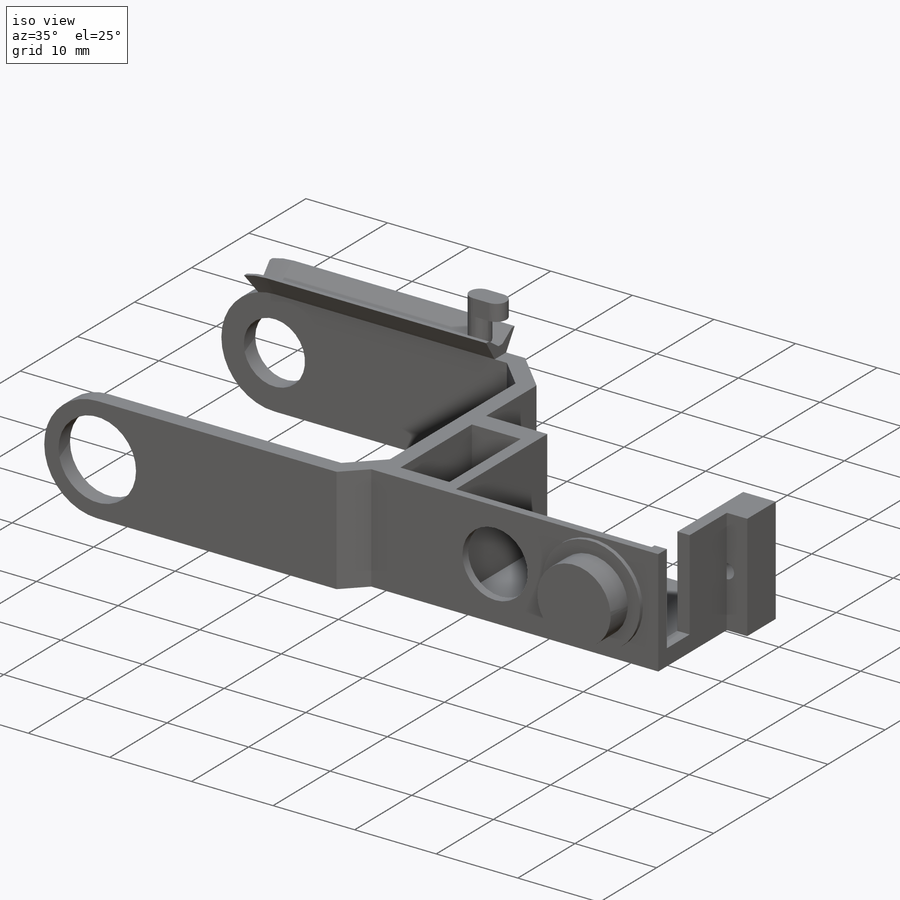
[diagram: iso view]
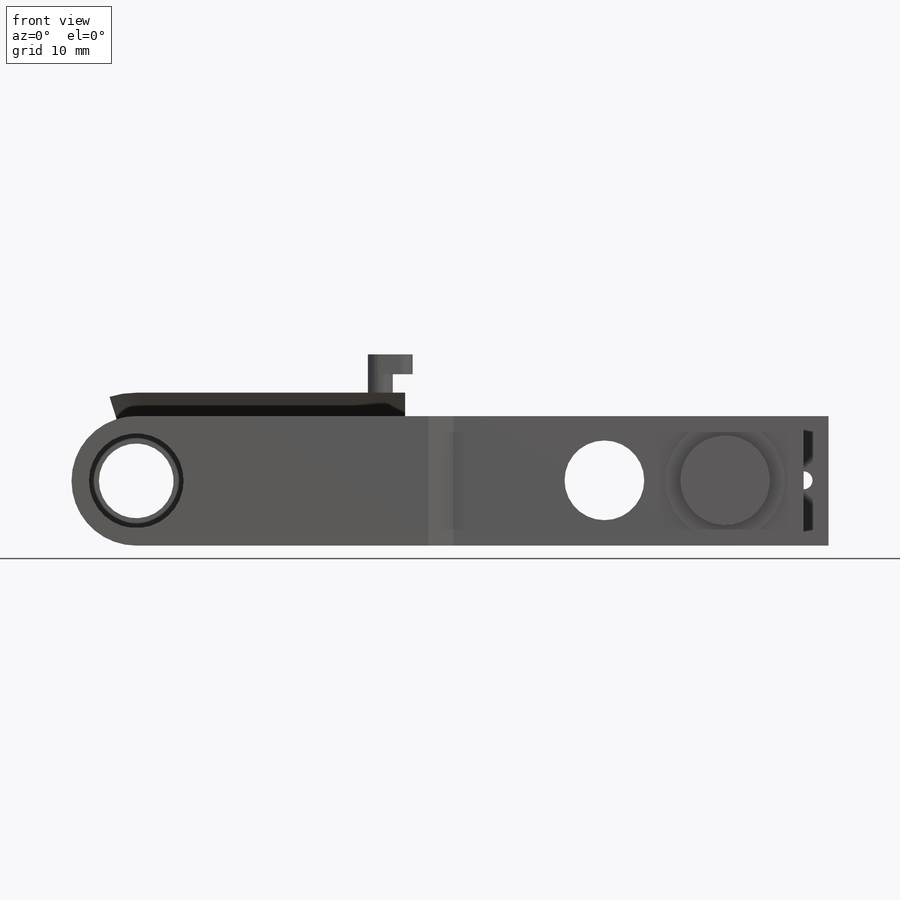
[diagram: front view]
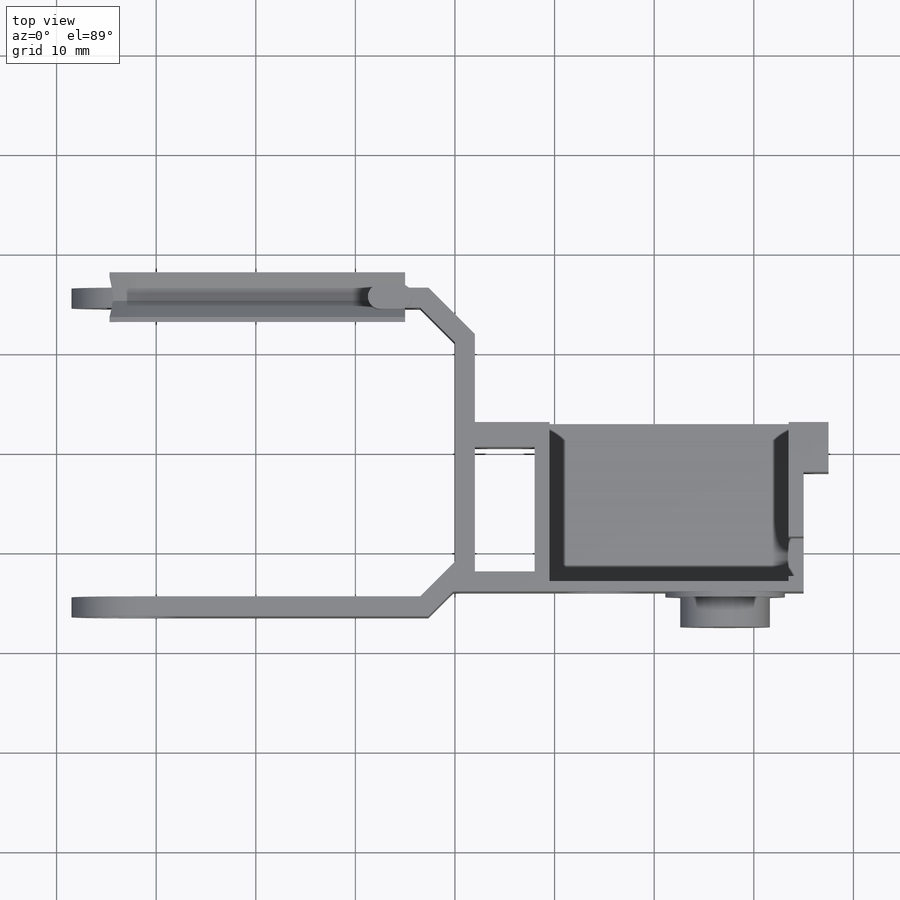
[diagram: top view]
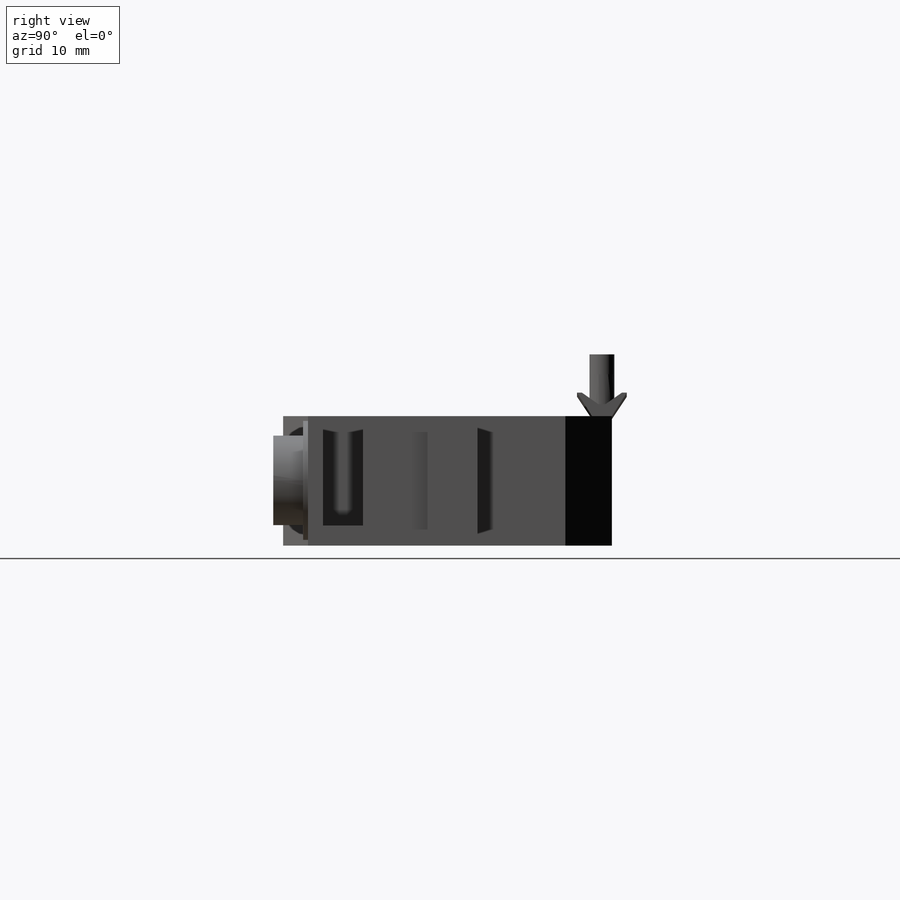
[diagram: right view]
SOLIDWORKS PART (.sldprt)
format: sldprt  version: not decoded by parser v0  size: 480,256 bytes
history: native  units: mm
features: sketch x15, cut_extrude x7, extrude x6, plane x4, material x1, fillet x1, sweep x1 (+10 scaffold rows collapsed)
feature tree (45):
  scaffold x10  (default folders/planes/origin — collapsed)
  material  "uhlíková ocel 7850"
  plane  "Přední rovina"
  plane  "Horní rovina"
  plane  "Pravá rovina"
  sketch  "Skica1"  dims[c1.D1=11.0mm c1.D2=~4.27362mm c2.D2=135.0deg c2.D3=35.0mm c2.D4=2.0mm c2.D5=2.0mm c2.D6=2.0mm c2.D7=14.5mm]
  extrude  "Přidat vysunutím1"  Depth=13mm
  sketch  "Skica2"  dims[D1=2.5mm D2=35.0mm D3=12.0mm D4=5.0mm D5=2.5mm]
  extrude  "Přidat vysunutím2"  [1 undecoded]
  sketch  "Skica3"  dims[D1=2.0mm D2=2.5mm D3=2.0mm D4=6.0mm]
  cut_extrude  "Odebrat vysunutím1"  [1 undecoded]
  sketch  "Skica4"  dims[D1=1.0mm D2=1.5mm D3=24.0mm]
  cut_extrude  "Odebrat vysunutím2"  Depth=12mm
  sketch  "Skica5"  dims[D1=1.8mm]
  cut_extrude  "Odebrat vysunutím3"  Depth=5mm
  fillet  "Zaoblit1"  Radius=6.5mm
  sketch  "Skica6"  dims[D1=7.5mm]
  cut_extrude  "Odebrat vysunutím4"  Depth=5mm
  sketch  "Skica7"  dims[D1=9.5mm]
  cut_extrude  "Odebrat vysunutím5"  Depth=5mm
  sketch  "Skica8"  dims[D1=1.5mm D2=4.0mm D3=11.0mm]
  cut_extrude  "Odebrat vysunutím6"  Depth=5mm
  sketch  "Skica9"  dims[c1.D1=8.0mm c1.D2=8.0mm c1.D3=12.0mm c2.D2=20.0mm]
  cut_extrude  "Odebrat vysunutím7"  Depth=10mm
  sketch  "Skica10"  dims[D1=12.0mm]
  extrude  "Přidat vysunutím3"  Depth=0.5mm
  sketch  "Skica11"  dims[D1=9.0mm]
  extrude  "Přidat vysunutím4"  Depth=3mm
  plane  "Rovina1"  Offset=5mm
  sketch  "Skica12"  dims[c1.D1=2.0mm c1.D2=5.0mm c1.D3=1.0mm c2.D1=1.2mm c2.D3=~2.391754mm c3.D3=65.0deg c3.D4=~1.154528mm c4.D4=110.0deg c4.D5=0.5mm]
  sketch  "Skica14"  dims[D1=2.0mm]
  sweep  "Táhnout po křivce1"
  sketch  "Skica15"  dims[D1=2.5mm D2=2.5mm]
  extrude  "Přidat vysunutím5"  Depth=10mm
  sketch  "Skica16"  dims[D1=2.0mm]
  extrude  "Přidat vysunutím6"  Depth=2mm
decode coverage: 27 of 30 modeling features carry decoded parameters
note: ~ marks probable driven/reference dimensions
note: 2 parameter values undecoded
note: suppression state not decoded; provenance and decode notes live in map.json
